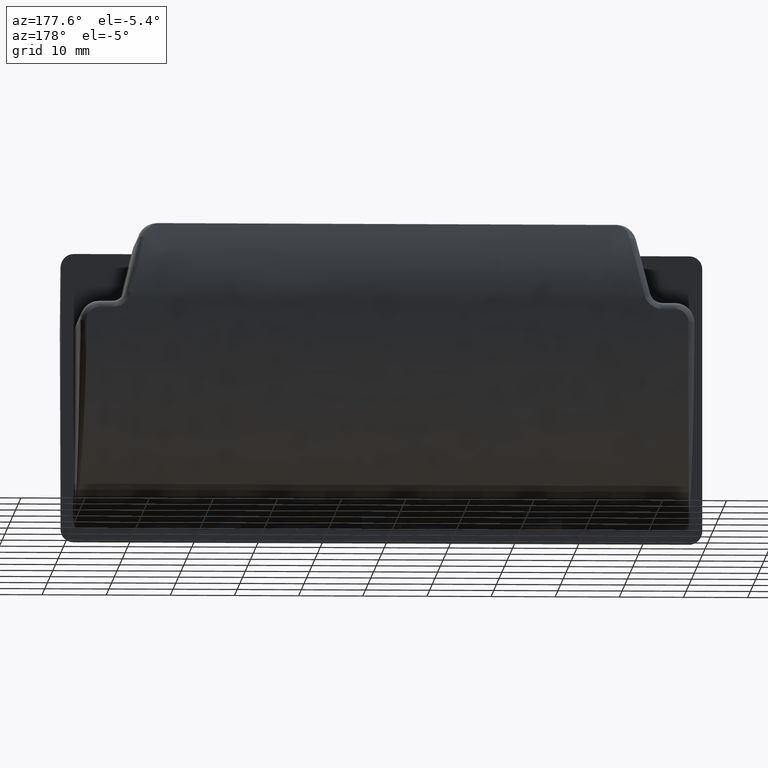
[diagram: clean part render]
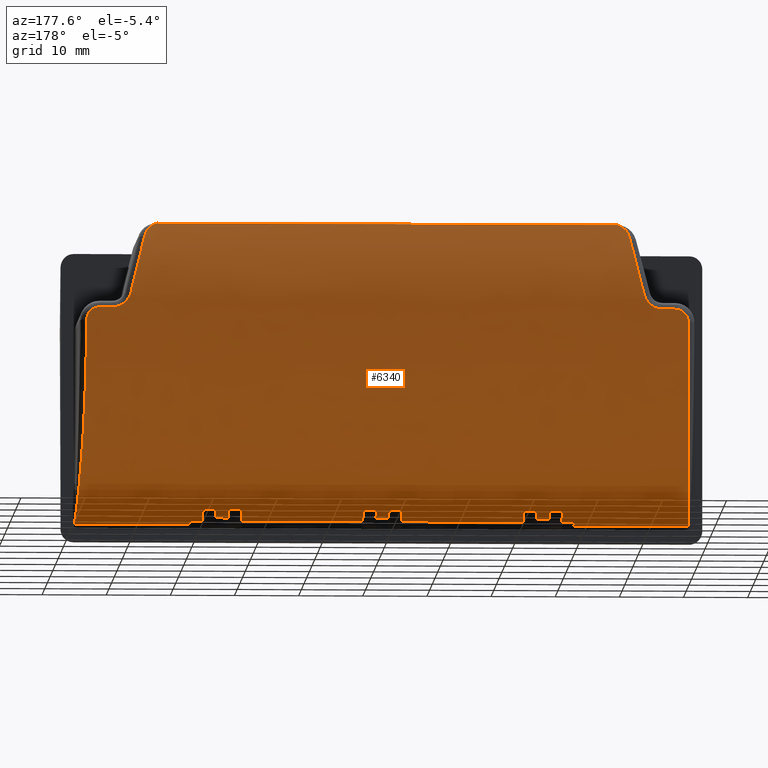
[diagram: same view with one face highlighted and labeled with its STEP entity id]
A machine part, auxiliary view. The second image highlights one B-rep face of the part: STEP entity #6340.
In plain terms, the highlighted face is a freeform B-spline surface patch.
Its self-contained STEP definition (entity closure, byte-faithful):
#92=CARTESIAN_POINT('',(-35.899999999999999,19.893540093386449,24.750000000000000));
#93=VERTEX_POINT('',#92);
#115=CARTESIAN_POINT('',(-37.839148576280898,20.612478520600650,22.514547285819450));
#116=VERTEX_POINT('',#115);
#117=CARTESIAN_POINT('',(-37.839148576280898,20.612478520600650,22.514547285819450));
#118=CARTESIAN_POINT('',(-37.800870336549991,20.567686072222688,22.671177995549719));
#119=CARTESIAN_POINT('',(-37.759782833870652,20.521770831055552,22.827070854278659));
#120=CARTESIAN_POINT('',(-37.709788895459560,20.475668094829832,22.980219193853870));
#121=CARTESIAN_POINT('',(-37.608478700523413,20.382243224884348,23.290566580549680));
#122=CARTESIAN_POINT('',(-37.468074215580728,20.287496659540700,23.590993130167359));
#123=CARTESIAN_POINT('',(-37.266355972204501,20.201926652896510,23.851368486637138));
#124=CARTESIAN_POINT('',(-36.994683596115401,20.086681712042910,24.202039752573441));
#125=CARTESIAN_POINT('',(-36.629683232497491,19.985544890992550,24.490831413372241));
#126=CARTESIAN_POINT('',(-36.200819866751040,19.929103724347019,24.650119651113862));
#127=CARTESIAN_POINT('',(-36.101954704270852,19.916092435538818,24.686840105140281));
#128=CARTESIAN_POINT('',(-36.003242477033709,19.902457157588710,24.725096624598098));
#129=CARTESIAN_POINT('',(-35.899999999999999,19.893540093386449,24.750000000000000));
#130=B_SPLINE_CURVE_WITH_KNOTS('',3,(#117,#118,#119,#120,#121,#122,#123,#124,#125,#126,#127,#128,#129),.UNSPECIFIED.,.F.,.U.,(4,3,3,3,4),(0.0,0.502038740231063,1.519394928897157,2.889561397124688,3.205423607156206),.UNSPECIFIED.);
#131=EDGE_CURVE('',#116,#93,#130,.T.);
#193=CARTESIAN_POINT('',(-39.991277135578251,21.982236698723849,13.747018506731020));
#194=VERTEX_POINT('',#193);
#224=CARTESIAN_POINT('',(-39.991277135578251,21.982236698723849,13.747018506731020));
#225=CARTESIAN_POINT('',(-38.894333844764773,21.841800353381220,18.215841630557282));
#226=CARTESIAN_POINT('',(-37.839148576280863,20.612478520600661,22.514547285819440));
#234=(BOUNDED_CURVE()B_SPLINE_CURVE(2,(#224,#225,#226),.UNSPECIFIED.,.F.,.U.)CURVE()GEOMETRIC_REPRESENTATION_ITEM()QUASI_UNIFORM_CURVE()RATIONAL_B_SPLINE_CURVE((1.0,0.992375855348941,1.0))REPRESENTATION_ITEM(''));
#235=EDGE_CURVE('',#194,#116,#234,.T.);
#278=CARTESIAN_POINT('',(-42.899999999999999,21.980008804350351,11.416678631326921));
#279=VERTEX_POINT('',#278);
#323=CARTESIAN_POINT('',(-42.899999999999999,21.980008804350351,11.416678631326921));
#324=CARTESIAN_POINT('',(-42.730981769640920,21.980008804350351,11.416678631326921));
#325=CARTESIAN_POINT('',(-42.564334933638790,21.980503485457071,11.431264111568360));
#326=CARTESIAN_POINT('',(-42.317777236776401,21.981881275858569,11.474133958457980));
#327=CARTESIAN_POINT('',(-42.236163227712453,21.982445618394941,11.491941813435860));
#328=CARTESIAN_POINT('',(-42.114609343296387,21.983427898337819,11.523988364164870));
#329=CARTESIAN_POINT('',(-42.074236090075971,21.983777889493521,11.535560827425360));
#330=CARTESIAN_POINT('',(-41.993782882736618,21.984518532182680,11.560510358557741));
#331=CARTESIAN_POINT('',(-41.953636822896208,21.984909935774599,11.573914774342990));
#332=CARTESIAN_POINT('',(-41.755460677760013,21.986936652594139,11.644850265543340));
#333=CARTESIAN_POINT('',(-41.603792400148293,21.988794214440009,11.714373309548870));
#334=CARTESIAN_POINT('',(-41.386154235536416,21.991588537919611,11.837000692940050));
#335=CARTESIAN_POINT('',(-41.315261231993397,21.992520782920550,11.880950388762621));
#336=CARTESIAN_POINT('',(-41.211423987213628,21.993870347403870,11.951529090558619));
#337=CARTESIAN_POINT('',(-41.177229147259951,21.994312010929640,11.975832007234470));
#338=CARTESIAN_POINT('',(-41.109685014616751,21.995169811494080,12.026010746033290));
#339=CARTESIAN_POINT('',(-41.076261992817820,21.995586815053692,12.051949008904060));
#340=CARTESIAN_POINT('',(-40.912622980210649,21.997567768273811,12.184542900498350));
#341=CARTESIAN_POINT('',(-40.792206983161563,21.998828460150740,12.300167797804850));
#342=CARTESIAN_POINT('',(-40.626584416537867,21.999822926898361,12.487257531373320));
#343=CARTESIAN_POINT('',(-40.573890796368580,22.000004768246470,12.551908605758319));
#344=CARTESIAN_POINT('',(-40.473564453791653,21.999995041823450,12.685816917467671));
#345=CARTESIAN_POINT('',(-40.425811421543067,21.999802361092371,12.755267292585771));
#346=CARTESIAN_POINT('',(-40.291150161124811,21.998550624905111,12.969431452288759));
#347=CARTESIAN_POINT('',(-40.214109644634078,21.996835044621822,13.117654908643090));
#348=CARTESIAN_POINT('',(-40.084293675240097,21.991253291011741,13.424473587816790));
#349=CARTESIAN_POINT('',(-40.031520891476220,21.987388912196071,13.583069988650360));
#350=CARTESIAN_POINT('',(-39.991277135578251,21.982236698723849,13.747018506731020));
#351=B_SPLINE_CURVE_WITH_KNOTS('',3,(#323,#324,#325,#326,#327,#328,#329,#330,#331,#332,#333,#334,#335,#336,#337,#338,#339,#340,#341,#342,#343,#344,#345,#346,#347,#348,#349,#350),.UNSPECIFIED.,.F.,.U.,(4,2,2,2,2,2,2,2,2,2,2,2,2,4),(0.0,0.125000000000002,0.187500000000004,0.218750000000004,0.250000000000005,0.374999999999991,0.437499999999982,0.468749999999980,0.499999999999977,0.624999999999982,0.687499999999983,0.749999999999985,0.874999999999993,1.0),.UNSPECIFIED.);
#352=EDGE_CURVE('',#279,#194,#351,.T.);
#371=CARTESIAN_POINT('',(-44.900000000000013,21.980008804350351,11.416678631326921));
#372=VERTEX_POINT('',#371);
#396=CARTESIAN_POINT('',(-44.900000000000013,21.980008804350351,11.416678631326921));
#397=CARTESIAN_POINT('',(-42.899999999999999,21.980008804350351,11.416678631326921));
#398=QUASI_UNIFORM_CURVE('',1,(#396,#397),.UNSPECIFIED.,.F.,.U.);
#399=EDGE_CURVE('',#372,#279,#398,.T.);
#512=CARTESIAN_POINT('',(-46.899999999999999,21.852389405818052,9.359535774184069));
#513=VERTEX_POINT('',#512);
#564=CARTESIAN_POINT('',(-46.899999999999999,21.852389405818052,9.359535774184069));
#565=CARTESIAN_POINT('',(-46.900000000000020,21.864516404296889,9.493039091184595));
#566=CARTESIAN_POINT('',(-46.887483280503481,21.875774419913810,9.625251615995460));
#567=CARTESIAN_POINT('',(-46.849967114386693,21.891425652238929,9.821632204573520));
#568=CARTESIAN_POINT('',(-46.834293989078233,21.896429323675399,9.886699851274436));
#569=CARTESIAN_POINT('',(-46.797200243700942,21.905878902245579,10.013954488775161));
#570=CARTESIAN_POINT('',(-46.754263704559712,21.914817017285241,10.138899526170700));
#571=CARTESIAN_POINT('',(-46.699736514937761,21.922807463528301,10.259258262620371));
#572=CARTESIAN_POINT('',(-46.654407360013302,21.928469011575711,10.347770762046160));
#573=CARTESIAN_POINT('',(-46.638557398416779,21.930300940911131,10.376981657535991));
#574=CARTESIAN_POINT('',(-46.605345984128753,21.933857884422551,10.434804214819650));
#575=CARTESIAN_POINT('',(-46.587940779102311,21.935586499632521,10.463478833631010));
#576=CARTESIAN_POINT('',(-46.497951242813883,21.943889836235410,10.603923054933061));
#577=CARTESIAN_POINT('',(-46.416147162315767,21.949507363676659,10.707827195477909));
#578=CARTESIAN_POINT('',(-46.278877352507763,21.956732631416610,10.851123036771400));
#579=CARTESIAN_POINT('',(-46.230676644731410,21.958939430682481,10.896780416855030));
#580=CARTESIAN_POINT('',(-46.154567264591869,21.961978119785890,10.961979767377750));
#581=CARTESIAN_POINT('',(-46.128528106310277,21.962946464013090,10.983183553903631));
#582=CARTESIAN_POINT('',(-46.075751831466746,21.964777170750210,11.024010295074969));
#583=CARTESIAN_POINT('',(-46.048947102310450,21.965642429565630,11.043694267699181));
#584=CARTESIAN_POINT('',(-45.912868158231937,21.969738254051620,11.138514883354990));
#585=CARTESIAN_POINT('',(-45.797487984118469,21.972286621965878,11.202958641015700));
#586=CARTESIAN_POINT('',(-45.614447213703208,21.975281593159298,11.282151905878010));
#587=CARTESIAN_POINT('',(-45.551382428418641,21.976143692292130,11.305717605389750));
#588=CARTESIAN_POINT('',(-45.424263190398563,21.977585776762002,11.345922627654540));
#589=CARTESIAN_POINT('',(-45.360112334454698,21.978169476249771,11.362652418637079));
#590=CARTESIAN_POINT('',(-45.165923140560558,21.979557957052631,11.402933755729549));
#591=CARTESIAN_POINT('',(-45.034165973739107,21.980008804350359,11.416678631326921));
#592=CARTESIAN_POINT('',(-44.900000000000013,21.980008804350351,11.416678631326921));
#593=B_SPLINE_CURVE_WITH_KNOTS('',3,(#564,#565,#566,#567,#568,#569,#570,#571,#572,#573,#574,#575,#576,#577,#578,#579,#580,#581,#582,#583,#584,#585,#586,#587,#588,#589,#590,#591,#592),.UNSPECIFIED.,.F.,.U.,(4,2,2,1,2,2,2,2,2,2,2,2,2,2,4),(0.0,0.124999999999990,0.187499999999986,0.249999999999983,0.312499999999979,0.343749999999979,0.374999999999980,0.499999999999986,0.562499999999992,0.593749999999996,0.624999999999999,0.750000000000001,0.812499999999999,0.874999999999998,1.0),.UNSPECIFIED.);
#594=EDGE_CURVE('',#513,#372,#593,.T.);
#724=CARTESIAN_POINT('',(-47.896685749016193,-0.001224091961159,-20.546921611470491));
#725=VERTEX_POINT('',#724);
#726=CARTESIAN_POINT('',(-47.896685749016193,-0.001224091961159,-20.546921611470491));
#727=CARTESIAN_POINT('',(-47.885773402638563,0.259481165434836,-20.434799618005250));
#728=CARTESIAN_POINT('',(-47.864317647580421,0.772076755020469,-20.214344328507622));
#729=CARTESIAN_POINT('',(-47.832779046622193,1.517805225134992,-19.867136862326682));
#730=CARTESIAN_POINT('',(-47.802418920714970,2.230138305095111,-19.517290070802410));
#731=CARTESIAN_POINT('',(-47.773245712067776,2.908845177937521,-19.165151865281640));
#732=CARTESIAN_POINT('',(-47.745257845779683,3.554638972780887,-18.812920656426929));
#733=CARTESIAN_POINT('',(-47.718455584276178,4.168058561744786,-18.462203011982002));
#734=CARTESIAN_POINT('',(-47.692838732872502,4.749725880659209,-18.114641992472290));
#735=CARTESIAN_POINT('',(-47.668407215307653,5.300272014121669,-17.771759969972820));
#736=CARTESIAN_POINT('',(-47.645160939336229,5.820347497085275,-17.435000349067948));
#737=CARTESIAN_POINT('',(-47.623099785851593,6.310611906358920,-17.105719307174109));
#738=CARTESIAN_POINT('',(-47.602223758593681,6.771728957045408,-16.785190470616321));
#739=CARTESIAN_POINT('',(-47.582532428413458,7.204361302212331,-16.474605907650890));
#740=CARTESIAN_POINT('',(-47.564026844765017,7.609163722067380,-16.175080166814439));
#741=CARTESIAN_POINT('',(-47.546702965801543,7.986784495201670,-15.887646699884010));
#742=CARTESIAN_POINT('',(-47.503812097618699,8.920330609838373,-15.158035507260561));
#743=CARTESIAN_POINT('',(-47.438086533676028,10.336639639167791,-13.950080177221521));
#744=CARTESIAN_POINT('',(-47.353716663395041,12.118777634518770,-12.195896075829911));
#745=CARTESIAN_POINT('',(-47.278146003832717,13.688244678134330,-10.427140885081601));
#746=CARTESIAN_POINT('',(-47.212780351498068,15.028524516021699,-8.707317518512564));
#747=CARTESIAN_POINT('',(-47.156402691244452,16.181091975844559,-7.037042273072355));
#748=CARTESIAN_POINT('',(-47.107466732424740,17.181155548372541,-5.407441420251323));
#749=CARTESIAN_POINT('',(-47.063686413280230,18.077077904532629,-3.758933633686135));
#750=CARTESIAN_POINT('',(-47.025065797716792,18.871339969496852,-2.098653399444526));
#751=CARTESIAN_POINT('',(-46.991604031524943,19.566795058013358,-0.433301272962154));
#752=CARTESIAN_POINT('',(-46.963298119086488,20.166690797693182,1.230867502905395));
#753=CARTESIAN_POINT('',(-46.940158262096460,20.674390251261880,2.888064594630160));
#754=CARTESIAN_POINT('',(-46.922145723514390,21.094157752944991,4.532893349213828));
#755=CARTESIAN_POINT('',(-46.909399263877361,21.428112216367659,6.160617492438631));
#756=CARTESIAN_POINT('',(-46.901416246937977,21.687043396067569,7.766168532635901));
#757=CARTESIAN_POINT('',(-46.900468573068011,21.797683771515960,8.832361482185121));
#758=CARTESIAN_POINT('',(-46.899999999999999,21.852389405818052,9.359535774184069));
#759=B_SPLINE_CURVE_WITH_KNOTS('',3,(#726,#727,#728,#729,#730,#731,#732,#733,#734,#735,#736,#737,#738,#739,#740,#741,#742,#743,#744,#745,#746,#747,#748,#749,#750,#751,#752,#753,#754,#755,#756,#757,#758),.UNSPECIFIED.,.F.,.U.,(4,1,1,1,1,1,1,1,1,1,1,1,1,1,1,1,1,1,1,1,1,1,1,1,1,1,1,1,1,1,4),(0.000005639576252,0.021896131467624,0.043046539183044,0.063451219886814,0.083110170459251,0.102023387923423,0.120190869448762,0.137612612355442,0.154288614119736,0.170218872380634,0.185403384948071,0.199842149813302,0.213535165162078,0.226482429391637,0.238683941132872,0.250139699279726,0.317873748717035,0.382114477535371,0.442861840647980,0.500115838875528,0.550158430046920,0.599280517912298,0.647482332891308,0.694764119786767,0.741126138904787,0.786568667287427,0.831092000071647,0.874696451990360,0.917382359033694,0.959150080291330,1.0),.UNSPECIFIED.);
#760=EDGE_CURVE('',#725,#513,#759,.T.);
#996=CARTESIAN_POINT('',(46.899999999999999,21.852389405818052,9.359535774184069));
#997=VERTEX_POINT('',#996);
#1009=CARTESIAN_POINT('',(47.896686583894329,-0.001223783607167,-20.546922386931310));
#1010=VERTEX_POINT('',#1009);
#1023=CARTESIAN_POINT('',(46.899999999999999,21.852389405818052,9.359535774184069));
#1024=CARTESIAN_POINT('',(46.900130361389550,21.824126748446901,9.070914564498111));
#1025=CARTESIAN_POINT('',(46.900392703717657,21.767250311650500,8.490086450027960));
#1026=CARTESIAN_POINT('',(46.902768869087922,21.654446936789871,7.616436966000594));
#1027=CARTESIAN_POINT('',(46.906589546105813,21.520070123925340,6.734975467200311));
#1028=CARTESIAN_POINT('',(46.912002295349417,21.361453989155269,5.846541585613918));
#1029=CARTESIAN_POINT('',(46.918966877459887,21.178431435632142,4.951787939603158));
#1030=CARTESIAN_POINT('',(46.927494300108407,20.970168959908360,4.051468417638176));
#1031=CARTESIAN_POINT('',(46.937581594908011,20.736032664851500,3.146360155846571));
#1032=CARTESIAN_POINT('',(46.949229609765730,20.475354510786619,2.237285367648124));
#1033=CARTESIAN_POINT('',(46.962438156509222,20.187498646524240,1.325105840215020));
#1034=CARTESIAN_POINT('',(46.977207334216253,19.871845990658809,0.410724782644463));
#1035=CARTESIAN_POINT('',(46.993537168571173,19.527801188955529,-0.504913440664827));
#1036=CARTESIAN_POINT('',(47.011427710539891,19.154793556577861,-1.420823115530112));
#1037=CARTESIAN_POINT('',(47.030879008887318,18.752279735175851,-2.335977239578807));
#1038=CARTESIAN_POINT('',(47.051891120707303,18.319745978987100,-3.249307622699699));
#1039=CARTESIAN_POINT('',(47.074464097788422,17.856710541690500,-4.159705203527599));
#1040=CARTESIAN_POINT('',(47.098598031888841,17.362726382553021,-5.066020121980664));
#1041=CARTESIAN_POINT('',(47.124292885518472,16.837382794482920,-5.967063270141456));
#1042=CARTESIAN_POINT('',(47.151549133423842,16.280311382223509,-6.861602833886648));
#1043=CARTESIAN_POINT('',(47.180365331777530,15.691175752283510,-7.748380441149324));
#1044=CARTESIAN_POINT('',(47.221492097410703,14.849942860277499,-8.936447779349912));
#1045=CARTESIAN_POINT('',(47.278137871129097,13.688388664463799,-10.426955493683650));
#1046=CARTESIAN_POINT('',(47.353703007193701,12.119038236836079,-12.195614584156310));
#1047=CARTESIAN_POINT('',(47.438086720873748,10.336814078119859,-13.949921898988350));
#1048=CARTESIAN_POINT('',(47.510202490910437,8.782194352350041,-15.275855197761461));
#1049=CARTESIAN_POINT('',(47.567787853458903,7.527715837626763,-16.241087689689920));
#1050=CARTESIAN_POINT('',(47.609287539917183,6.617587892288705,-16.899789099781930));
#1051=CARTESIAN_POINT('',(47.656212812873193,5.575683268444858,-17.602504758107148));
#1052=CARTESIAN_POINT('',(47.708581939447740,4.395607381269108,-18.337172356528821));
#1053=CARTESIAN_POINT('',(47.766396713674943,3.070346624138356,-19.088091536228621));
#1054=CARTESIAN_POINT('',(47.829634092642529,1.596693247487032,-19.845537381553321));
#1055=CARTESIAN_POINT('',(47.873768018016023,0.544945397550837,-20.307190346547650));
#1056=CARTESIAN_POINT('',(47.896686583894329,-0.001223783607167,-20.546922386931310));
#1057=B_SPLINE_CURVE_WITH_KNOTS('',3,(#1023,#1024,#1025,#1026,#1027,#1028,#1029,#1030,#1031,#1032,#1033,#1034,#1035,#1036,#1037,#1038,#1039,#1040,#1041,#1042,#1043,#1044,#1045,#1046,#1047,#1048,#1049,#1050,#1051,#1052,#1053,#1054,#1055,#1056),.UNSPECIFIED.,.F.,.U.,(4,1,1,1,1,1,1,1,1,1,1,1,1,1,1,1,1,1,1,1,1,1,1,1,1,1,1,1,1,1,1,4),(0.0,0.022353797540702,0.044985308220906,0.067894600150437,0.091081738966689,0.114546787950870,0.138289808137503,0.162310858417658,0.186609995636323,0.211187274684329,0.236042748585162,0.261176468577026,0.286588484190434,0.312278843321648,0.338247592302205,0.364494775964783,0.391020437705642,0.417824619543845,0.444907362177449,0.472268705036868,0.499908686335553,0.557152466290041,0.617895502307022,0.682137794523149,0.749879297045279,0.775335300922110,0.804216655709691,0.836523269099693,0.872255035229616,0.911411835329557,0.953993538109033,0.999993731756879),.UNSPECIFIED.);
#1058=EDGE_CURVE('',#997,#1010,#1057,.T.);
#1171=CARTESIAN_POINT('',(44.900000000000013,21.980008804350351,11.416678631326921));
#1172=VERTEX_POINT('',#1171);
#1225=CARTESIAN_POINT('',(44.900000000000013,21.980008804350351,11.416678631326921));
#1226=CARTESIAN_POINT('',(45.034157543835583,21.980008804350351,11.416678631326921));
#1227=CARTESIAN_POINT('',(45.166743250429903,21.979558311088311,11.402933143789509));
#1228=CARTESIAN_POINT('',(45.363287789990672,21.978143576482928,11.361906629499529));
#1229=CARTESIAN_POINT('',(45.428114319701983,21.977547271626989,11.344832148995909));
#1230=CARTESIAN_POINT('',(45.554572078045133,21.976102027736850,11.304573937599891));
#1231=CARTESIAN_POINT('',(45.678397935115051,21.974400330008780,11.258095900646840));
#1232=CARTESIAN_POINT('',(45.797053272866769,21.972122537790071,11.199401437881241));
#1233=CARTESIAN_POINT('',(45.913093558826603,21.969508838426009,11.134530081744790));
#1234=CARTESIAN_POINT('',(45.970106082118257,21.968023829086309,11.098775070520199));
#1235=CARTESIAN_POINT('',(46.133933751448971,21.963066975897569,10.984175122711999));
#1236=CARTESIAN_POINT('',(46.234143428558923,21.959097088623452,10.897959922826020));
#1237=CARTESIAN_POINT('',(46.371419729854821,21.951856599926870,10.754447357916680));
#1238=CARTESIAN_POINT('',(46.414989533308542,21.949227525523440,10.704227527729550));
#1239=CARTESIAN_POINT('',(46.497638209249729,21.943470910355352,10.598902986129429));
#1240=CARTESIAN_POINT('',(46.536128926052662,21.940383025952180,10.544535332784161));
#1241=CARTESIAN_POINT('',(46.643013604620592,21.930471997702220,10.377122597889009));
#1242=CARTESIAN_POINT('',(46.703099825999587,21.922991176258058,10.259548320852550));
#1243=CARTESIAN_POINT('',(46.776520987866398,21.910196778423600,10.074280293994200));
#1244=CARTESIAN_POINT('',(46.798245242344933,21.905647171631578,10.010754968979620));
#1245=CARTESIAN_POINT('',(46.835205675839063,21.896160721996349,9.883165821651311));
#1246=CARTESIAN_POINT('',(46.850561021648872,21.891209304053589,9.818870905580743));
#1247=CARTESIAN_POINT('',(46.887485947057542,21.875708923498941,9.624525533234916));
#1248=CARTESIAN_POINT('',(46.899999999999977,21.864515441253950,9.493028489268163));
#1249=CARTESIAN_POINT('',(46.899999999999999,21.852389405818052,9.359535774184069));
#1250=B_SPLINE_CURVE_WITH_KNOTS('',3,(#1225,#1226,#1227,#1228,#1229,#1230,#1231,#1232,#1233,#1234,#1235,#1236,#1237,#1238,#1239,#1240,#1241,#1242,#1243,#1244,#1245,#1246,#1247,#1248,#1249),.UNSPECIFIED.,.F.,.U.,(4,2,2,1,2,2,2,2,2,2,2,2,4),(0.0,0.124999999999997,0.187499999999995,0.249999999999994,0.312499999999992,0.374999999999990,0.499999999999992,0.562499999999994,0.624999999999995,0.749999999999997,0.812499999999997,0.874999999999998,1.0),.UNSPECIFIED.);
#1251=EDGE_CURVE('',#1172,#997,#1250,.T.);
#1270=CARTESIAN_POINT('',(42.899999999999999,21.980008804350351,11.416678631326921));
#1271=VERTEX_POINT('',#1270);
#1295=CARTESIAN_POINT('',(42.899999999999999,21.980008804350351,11.416678631326921));
#1296=CARTESIAN_POINT('',(44.900000000000013,21.980008804350351,11.416678631326921));
#1297=QUASI_UNIFORM_CURVE('',1,(#1295,#1296),.UNSPECIFIED.,.F.,.U.);
#1298=EDGE_CURVE('',#1271,#1172,#1297,.T.);
#1381=CARTESIAN_POINT('',(39.991277135578251,21.982236698723849,13.747018506730960));
#1382=VERTEX_POINT('',#1381);
#1424=CARTESIAN_POINT('',(39.991277135578251,21.982236698723849,13.747018506730960));
#1425=CARTESIAN_POINT('',(40.031522691082230,21.987389142590910,13.583062657259410));
#1426=CARTESIAN_POINT('',(40.084339528145250,21.991258618018829,13.424293762526631));
#1427=CARTESIAN_POINT('',(40.181938662461192,21.995450089303151,13.193726581355641));
#1428=CARTESIAN_POINT('',(40.217549525540697,21.996577930853739,13.118141632228969));
#1429=CARTESIAN_POINT('',(40.295032708775771,21.998342905852368,12.969558078298689));
#1430=CARTESIAN_POINT('',(40.337070871214060,21.998981275477622,12.896301278589140));
#1431=CARTESIAN_POINT('',(40.471739042212782,22.000221551265760,12.682424334465599));
#1432=CARTESIAN_POINT('',(40.571961408969962,22.000152905569738,12.548884251819331));
#1433=CARTESIAN_POINT('',(40.737631981482629,21.999155143041300,12.361854981606861));
#1434=CARTESIAN_POINT('',(40.795424663422487,21.998672607825160,12.301736613592880));
#1435=CARTESIAN_POINT('',(40.916251544596143,21.997475837408480,12.186038405648420));
#1436=CARTESIAN_POINT('',(40.979440554190482,21.996759637753520,12.130333541543431));
#1437=CARTESIAN_POINT('',(41.176187475466790,21.994375652232520,11.971119894856709));
#1438=CARTESIAN_POINT('',(41.314408801789902,21.992509378870501,11.877366376467910));
#1439=CARTESIAN_POINT('',(41.604596893568107,21.988784207866459,11.713979352194571));
#1440=CARTESIAN_POINT('',(41.756728529101402,21.986921399423689,11.644281173066499));
#1441=CARTESIAN_POINT('',(42.074857347257471,21.983672545144781,11.530641484419300));
#1442=CARTESIAN_POINT('',(42.236449230808986,21.982334845307509,11.488244531300561));
#1443=CARTESIAN_POINT('',(42.564508640992621,21.980503417618380,11.431264214890930));
#1444=CARTESIAN_POINT('',(42.730975773987211,21.980008804350341,11.416678631326921));
#1445=CARTESIAN_POINT('',(42.899999999999999,21.980008804350351,11.416678631326921));
#1446=B_SPLINE_CURVE_WITH_KNOTS('',3,(#1424,#1425,#1426,#1427,#1428,#1429,#1430,#1431,#1432,#1433,#1434,#1435,#1436,#1437,#1438,#1439,#1440,#1441,#1442,#1443,#1444,#1445),.UNSPECIFIED.,.F.,.U.,(4,2,2,2,2,2,2,2,2,2,4),(0.0,0.125000000000002,0.187500000000002,0.250000000000002,0.375000000000003,0.437500000000003,0.500000000000003,0.625000000000002,0.750000000000001,0.875000000000001,1.0),.UNSPECIFIED.);
#1447=EDGE_CURVE('',#1382,#1271,#1446,.T.);
#1500=CARTESIAN_POINT('',(37.839148576281147,20.612478520600700,22.514547285819351));
#1501=VERTEX_POINT('',#1500);
#1531=CARTESIAN_POINT('',(37.839148576281147,20.612478520600700,22.514547285819351));
#1532=CARTESIAN_POINT('',(38.894333844764915,21.841800353381295,18.215841630556962));
#1533=CARTESIAN_POINT('',(39.991277135578173,21.982236698723870,13.747018506730960));
#1541=(BOUNDED_CURVE()B_SPLINE_CURVE(2,(#1531,#1532,#1533),.UNSPECIFIED.,.F.,.U.)CURVE()GEOMETRIC_REPRESENTATION_ITEM()QUASI_UNIFORM_CURVE()RATIONAL_B_SPLINE_CURVE((1.0,0.992375855348944,1.0))REPRESENTATION_ITEM(''));
#1542=EDGE_CURVE('',#1501,#1382,#1541,.T.);
#1659=CARTESIAN_POINT('',(35.899999999999999,19.893540093386449,24.750000000000000));
#1660=VERTEX_POINT('',#1659);
#1661=CARTESIAN_POINT('',(35.899999999999999,19.893540093386449,24.750000000000000));
#1662=CARTESIAN_POINT('',(35.971908723157263,19.901021176630248,24.729073450007419));
#1663=CARTESIAN_POINT('',(36.114164903794418,19.915820915557148,24.687674702468460));
#1664=CARTESIAN_POINT('',(36.317985576727331,19.944970250857988,24.605489132863791));
#1665=CARTESIAN_POINT('',(36.511004439492027,19.978772748932620,24.509397655693629));
#1666=CARTESIAN_POINT('',(36.692767084002050,20.017592283319999,24.397956923035821));
#1667=CARTESIAN_POINT('',(36.863326086297633,20.061151382164159,24.271488891549200));
#1668=CARTESIAN_POINT('',(37.022705253040741,20.109286539787529,24.129923229668581));
#1669=CARTESIAN_POINT('',(37.170587891944663,20.161870921799078,23.973047086309968));
#1670=CARTESIAN_POINT('',(37.391776473367251,20.252722087234812,23.697457782329199));
#1671=CARTESIAN_POINT('',(37.645652763371857,20.407339515971401,23.215214311068578));
#1672=CARTESIAN_POINT('',(37.770023712781317,20.539194218060651,22.764855092230789));
#1673=CARTESIAN_POINT('',(37.839148576281147,20.612478520600700,22.514547285819351));
#1674=B_SPLINE_CURVE_WITH_KNOTS('',3,(#1661,#1662,#1663,#1664,#1665,#1666,#1667,#1668,#1669,#1670,#1671,#1672,#1673),.UNSPECIFIED.,.F.,.U.,(4,1,1,1,1,1,1,1,1,1,4),(0.0,0.070192661334592,0.138861315731970,0.206502697898061,0.273636348958989,0.340793594314227,0.408505203405899,0.477289113076353,0.547639579915645,0.748579934144833,1.000000000000000),.UNSPECIFIED.);
#1675=EDGE_CURVE('',#1660,#1501,#1674,.T.);
#3397=CARTESIAN_POINT('',(-26.0,4.013231578164450,-18.553023632871898));
#3398=VERTEX_POINT('',#3397);
#3412=CARTESIAN_POINT('',(-26.0,1.999999999999780,-19.632783089640800));
#3413=VERTEX_POINT('',#3412);
#3414=CARTESIAN_POINT('',(-26.0,1.999999999999736,-19.632783089640728));
#3415=CARTESIAN_POINT('',(-26.0,3.023754420584933,-19.124858658273478));
#3416=CARTESIAN_POINT('',(-26.0,4.013231578164396,-18.553023632871842));
#3424=(BOUNDED_CURVE()B_SPLINE_CURVE(2,(#3414,#3415,#3416),.UNSPECIFIED.,.F.,.U.)CURVE()GEOMETRIC_REPRESENTATION_ITEM()QUASI_UNIFORM_CURVE()RATIONAL_B_SPLINE_CURVE((1.0,0.999496499220353,1.0))REPRESENTATION_ITEM(''));
#3425=EDGE_CURVE('',#3413,#3398,#3424,.T.);
#3440=CARTESIAN_POINT('',(-24.0,1.999999999999780,-19.632783089640800));
#3441=VERTEX_POINT('',#3440);
#3449=CARTESIAN_POINT('',(-24.0,4.013231578164450,-18.553023632871898));
#3450=VERTEX_POINT('',#3449);
#3451=CARTESIAN_POINT('',(-24.0,1.999999999999736,-19.632783089640728));
#3452=CARTESIAN_POINT('',(-23.999999999999996,3.023754420584933,-19.124858658273478));
#3453=CARTESIAN_POINT('',(-24.0,4.013231578164396,-18.553023632871842));
#3461=(BOUNDED_CURVE()B_SPLINE_CURVE(2,(#3451,#3452,#3453),.UNSPECIFIED.,.F.,.U.)CURVE()GEOMETRIC_REPRESENTATION_ITEM()QUASI_UNIFORM_CURVE()RATIONAL_B_SPLINE_CURVE((1.0,0.999496499220353,1.0))REPRESENTATION_ITEM(''));
#3462=EDGE_CURVE('',#3441,#3450,#3461,.T.);
#3491=CARTESIAN_POINT('',(-24.0,1.999999999999780,-19.632783089640800));
#3492=CARTESIAN_POINT('',(-26.0,1.999999999999780,-19.632783089640800));
#3493=QUASI_UNIFORM_CURVE('',1,(#3491,#3492),.UNSPECIFIED.,.F.,.U.);
#3494=EDGE_CURVE('',#3441,#3413,#3493,.T.);
#3507=CARTESIAN_POINT('',(24.0,4.013231578164450,-18.553023632871898));
#3508=VERTEX_POINT('',#3507);
#3522=CARTESIAN_POINT('',(24.0,1.999999999999780,-19.632783089640800));
#3523=VERTEX_POINT('',#3522);
#3524=CARTESIAN_POINT('',(24.0,1.999999999999780,-19.632783089640800));
#3525=CARTESIAN_POINT('',(23.999999999999996,3.023754420584933,-19.124858658273478));
#3526=CARTESIAN_POINT('',(24.0,4.013231578164450,-18.553023632871898));
#3534=(BOUNDED_CURVE()B_SPLINE_CURVE(2,(#3524,#3525,#3526),.UNSPECIFIED.,.F.,.U.)CURVE()GEOMETRIC_REPRESENTATION_ITEM()QUASI_UNIFORM_CURVE()RATIONAL_B_SPLINE_CURVE((1.0,0.999496499220353,1.0))REPRESENTATION_ITEM(''));
#3535=EDGE_CURVE('',#3523,#3508,#3534,.T.);
#3550=CARTESIAN_POINT('',(26.0,1.999999999999780,-19.632783089640800));
#3551=VERTEX_POINT('',#3550);
#3559=CARTESIAN_POINT('',(26.0,4.013231578164450,-18.553023632871898));
#3560=VERTEX_POINT('',#3559);
#3561=CARTESIAN_POINT('',(26.0,1.999999999999780,-19.632783089640800));
#3562=CARTESIAN_POINT('',(26.0,3.023754420584933,-19.124858658273478));
#3563=CARTESIAN_POINT('',(26.0,4.013231578164450,-18.553023632871898));
#3571=(BOUNDED_CURVE()B_SPLINE_CURVE(2,(#3561,#3562,#3563),.UNSPECIFIED.,.F.,.U.)CURVE()GEOMETRIC_REPRESENTATION_ITEM()QUASI_UNIFORM_CURVE()RATIONAL_B_SPLINE_CURVE((1.0,0.999496499220353,1.0))REPRESENTATION_ITEM(''));
#3572=EDGE_CURVE('',#3551,#3560,#3571,.T.);
#3601=CARTESIAN_POINT('',(26.0,1.999999999999780,-19.632783089640800));
#3602=CARTESIAN_POINT('',(24.0,1.999999999999780,-19.632783089640800));
#3603=QUASI_UNIFORM_CURVE('',1,(#3601,#3602),.UNSPECIFIED.,.F.,.U.);
#3604=EDGE_CURVE('',#3551,#3523,#3603,.T.);
#3617=CARTESIAN_POINT('',(-1.0,4.013231578164450,-18.553023632871898));
#3618=VERTEX_POINT('',#3617);
#3632=CARTESIAN_POINT('',(-1.0,1.999999999999780,-19.632783089640800));
#3633=VERTEX_POINT('',#3632);
#3634=CARTESIAN_POINT('',(-1.0,1.999999999999780,-19.632783089640800));
#3635=CARTESIAN_POINT('',(-1.0,3.023754420584933,-19.124858658273478));
#3636=CARTESIAN_POINT('',(-1.0,4.013231578164450,-18.553023632871898));
#3644=(BOUNDED_CURVE()B_SPLINE_CURVE(2,(#3634,#3635,#3636),.UNSPECIFIED.,.F.,.U.)CURVE()GEOMETRIC_REPRESENTATION_ITEM()QUASI_UNIFORM_CURVE()RATIONAL_B_SPLINE_CURVE((1.0,0.999496499220353,1.0))REPRESENTATION_ITEM(''));
#3645=EDGE_CURVE('',#3633,#3618,#3644,.T.);
#3660=CARTESIAN_POINT('',(1.0,1.999999999999780,-19.632783089640800));
#3661=VERTEX_POINT('',#3660);
#3669=CARTESIAN_POINT('',(1.0,4.013231578164450,-18.553023632871898));
#3670=VERTEX_POINT('',#3669);
#3671=CARTESIAN_POINT('',(1.0,1.999999999999780,-19.632783089640800));
#3672=CARTESIAN_POINT('',(1.0,3.023754420584933,-19.124858658273478));
#3673=CARTESIAN_POINT('',(1.0,4.013231578164450,-18.553023632871898));
#3681=(BOUNDED_CURVE()B_SPLINE_CURVE(2,(#3671,#3672,#3673),.UNSPECIFIED.,.F.,.U.)CURVE()GEOMETRIC_REPRESENTATION_ITEM()QUASI_UNIFORM_CURVE()RATIONAL_B_SPLINE_CURVE((1.0,0.999496499220353,1.0))REPRESENTATION_ITEM(''));
#3682=EDGE_CURVE('',#3661,#3670,#3681,.T.);
#3711=CARTESIAN_POINT('',(1.0,1.999999999999780,-19.632783089640800));
#3712=CARTESIAN_POINT('',(-1.0,1.999999999999780,-19.632783089640800));
#3713=QUASI_UNIFORM_CURVE('',1,(#3711,#3712),.UNSPECIFIED.,.F.,.U.);
#3714=EDGE_CURVE('',#3661,#3633,#3713,.T.);
#3725=CARTESIAN_POINT('',(-22.0,1.129978450201466,-20.050000000000001));
#3726=VERTEX_POINT('',#3725);
#3727=CARTESIAN_POINT('',(-22.0,4.013231578164640,-18.553023632871401));
#3728=VERTEX_POINT('',#3727);
#3729=CARTESIAN_POINT('',(-22.0,1.129978450201456,-20.049999999999990));
#3730=CARTESIAN_POINT('',(-21.999999999999996,2.605411912214748,-19.366625632950679));
#3731=CARTESIAN_POINT('',(-22.0,4.013231578164632,-18.553023632871412));
#3739=(BOUNDED_CURVE()B_SPLINE_CURVE(2,(#3729,#3730,#3731),.UNSPECIFIED.,.F.,.U.)CURVE()GEOMETRIC_REPRESENTATION_ITEM()QUASI_UNIFORM_CURVE()RATIONAL_B_SPLINE_CURVE((1.0,0.998981533171721,1.0))REPRESENTATION_ITEM(''));
#3740=EDGE_CURVE('',#3726,#3728,#3739,.T.);
#3791=CARTESIAN_POINT('',(-28.0,1.129978450201466,-20.050000000000001));
#3792=VERTEX_POINT('',#3791);
#3800=CARTESIAN_POINT('',(-28.0,4.013231578164640,-18.553023632871401));
#3801=VERTEX_POINT('',#3800);
#3802=CARTESIAN_POINT('',(-28.0,1.129978450201456,-20.049999999999990));
#3803=CARTESIAN_POINT('',(-28.0,2.605411912214748,-19.366625632950679));
#3804=CARTESIAN_POINT('',(-28.0,4.013231578164632,-18.553023632871412));
#3812=(BOUNDED_CURVE()B_SPLINE_CURVE(2,(#3802,#3803,#3804),.UNSPECIFIED.,.F.,.U.)CURVE()GEOMETRIC_REPRESENTATION_ITEM()QUASI_UNIFORM_CURVE()RATIONAL_B_SPLINE_CURVE((1.0,0.998981533171721,1.0))REPRESENTATION_ITEM(''));
#3813=EDGE_CURVE('',#3792,#3801,#3812,.T.);
#3920=CARTESIAN_POINT('',(-22.0,4.013231578164640,-18.553023632871401));
#3921=CARTESIAN_POINT('',(-24.0,4.013231578164450,-18.553023632871898));
#3922=QUASI_UNIFORM_CURVE('',1,(#3920,#3921),.UNSPECIFIED.,.F.,.U.);
#3923=EDGE_CURVE('',#3728,#3450,#3922,.T.);
#3928=CARTESIAN_POINT('',(-26.0,4.013231578164450,-18.553023632871898));
#3929=CARTESIAN_POINT('',(-28.0,4.013231578164640,-18.553023632871401));
#3930=QUASI_UNIFORM_CURVE('',1,(#3928,#3929),.UNSPECIFIED.,.F.,.U.);
#3931=EDGE_CURVE('',#3398,#3801,#3930,.T.);
#3942=CARTESIAN_POINT('',(-2.999999999999890,4.013231578164640,-18.553023632871401));
#3943=VERTEX_POINT('',#3942);
#3944=CARTESIAN_POINT('',(-2.999999999999890,1.129978450201466,-20.050000000000001));
#3945=VERTEX_POINT('',#3944);
#3946=CARTESIAN_POINT('',(-2.999999999999890,4.013231578164656,-18.553023632871380));
#3947=CARTESIAN_POINT('',(-2.999999999999890,2.605411912214762,-19.366625632950665));
#3948=CARTESIAN_POINT('',(-2.999999999999890,1.129978450201482,-20.049999999999979));
#3956=(BOUNDED_CURVE()B_SPLINE_CURVE(2,(#3946,#3947,#3948),.UNSPECIFIED.,.F.,.U.)CURVE()GEOMETRIC_REPRESENTATION_ITEM()QUASI_UNIFORM_CURVE()RATIONAL_B_SPLINE_CURVE((1.0,0.998981533171721,1.0))REPRESENTATION_ITEM(''));
#3957=EDGE_CURVE('',#3943,#3945,#3956,.T.);
#4010=CARTESIAN_POINT('',(3.0,4.013231578164640,-18.553023632871401));
#4011=VERTEX_POINT('',#4010);
#4025=CARTESIAN_POINT('',(3.0,1.129978450201466,-20.050000000000001));
#4026=VERTEX_POINT('',#4025);
#4027=CARTESIAN_POINT('',(3.0,4.013231578164656,-18.553023632871380));
#4028=CARTESIAN_POINT('',(3.0,2.605411912214762,-19.366625632950665));
#4029=CARTESIAN_POINT('',(3.0,1.129978450201482,-20.049999999999979));
#4037=(BOUNDED_CURVE()B_SPLINE_CURVE(2,(#4027,#4028,#4029),.UNSPECIFIED.,.F.,.U.)CURVE()GEOMETRIC_REPRESENTATION_ITEM()QUASI_UNIFORM_CURVE()RATIONAL_B_SPLINE_CURVE((1.0,0.998981533171721,1.0))REPRESENTATION_ITEM(''));
#4038=EDGE_CURVE('',#4011,#4026,#4037,.T.);
#4137=CARTESIAN_POINT('',(3.0,4.013231578164640,-18.553023632871401));
#4138=CARTESIAN_POINT('',(1.0,4.013231578164450,-18.553023632871898));
#4139=QUASI_UNIFORM_CURVE('',1,(#4137,#4138),.UNSPECIFIED.,.F.,.U.);
#4140=EDGE_CURVE('',#4011,#3670,#4139,.T.);
#4145=CARTESIAN_POINT('',(-1.0,4.013231578164450,-18.553023632871898));
#4146=CARTESIAN_POINT('',(-2.999999999999890,4.013231578164640,-18.553023632871401));
#4147=QUASI_UNIFORM_CURVE('',1,(#4145,#4146),.UNSPECIFIED.,.F.,.U.);
#4148=EDGE_CURVE('',#3618,#3943,#4147,.T.);
#4159=CARTESIAN_POINT('',(22.0,4.013231578164640,-18.553023632871401));
#4160=VERTEX_POINT('',#4159);
#4161=CARTESIAN_POINT('',(22.0,1.129978450201466,-20.050000000000001));
#4162=VERTEX_POINT('',#4161);
#4163=CARTESIAN_POINT('',(22.0,4.013231578164656,-18.553023632871380));
#4164=CARTESIAN_POINT('',(22.000000000000004,2.605411912214762,-19.366625632950665));
#4165=CARTESIAN_POINT('',(22.0,1.129978450201482,-20.049999999999979));
#4173=(BOUNDED_CURVE()B_SPLINE_CURVE(2,(#4163,#4164,#4165),.UNSPECIFIED.,.F.,.U.)CURVE()GEOMETRIC_REPRESENTATION_ITEM()QUASI_UNIFORM_CURVE()RATIONAL_B_SPLINE_CURVE((1.0,0.998981533171721,1.0))REPRESENTATION_ITEM(''));
#4174=EDGE_CURVE('',#4160,#4162,#4173,.T.);
#4227=CARTESIAN_POINT('',(28.0,4.013231578164640,-18.553023632871401));
#4228=VERTEX_POINT('',#4227);
#4242=CARTESIAN_POINT('',(28.0,1.129978450201466,-20.050000000000001));
#4243=VERTEX_POINT('',#4242);
#4244=CARTESIAN_POINT('',(28.0,4.013231578164656,-18.553023632871380));
#4245=CARTESIAN_POINT('',(27.999999999999996,2.605411912214762,-19.366625632950665));
#4246=CARTESIAN_POINT('',(28.0,1.129978450201482,-20.049999999999979));
#4254=(BOUNDED_CURVE()B_SPLINE_CURVE(2,(#4244,#4245,#4246),.UNSPECIFIED.,.F.,.U.)CURVE()GEOMETRIC_REPRESENTATION_ITEM()QUASI_UNIFORM_CURVE()RATIONAL_B_SPLINE_CURVE((1.0,0.998981533171721,1.0))REPRESENTATION_ITEM(''));
#4255=EDGE_CURVE('',#4228,#4243,#4254,.T.);
#4354=CARTESIAN_POINT('',(28.0,4.013231578164640,-18.553023632871401));
#4355=CARTESIAN_POINT('',(26.0,4.013231578164450,-18.553023632871898));
#4356=QUASI_UNIFORM_CURVE('',1,(#4354,#4355),.UNSPECIFIED.,.F.,.U.);
#4357=EDGE_CURVE('',#4228,#3560,#4356,.T.);
#4362=CARTESIAN_POINT('',(24.0,4.013231578164450,-18.553023632871898));
#4363=CARTESIAN_POINT('',(22.0,4.013231578164640,-18.553023632871401));
#4364=QUASI_UNIFORM_CURVE('',1,(#4362,#4363),.UNSPECIFIED.,.F.,.U.);
#4365=EDGE_CURVE('',#3508,#4160,#4364,.T.);
#4376=CARTESIAN_POINT('',(30.0,1.129978450201466,-20.050000000000001));
#4377=VERTEX_POINT('',#4376);
#4378=CARTESIAN_POINT('',(30.0,0.0,-20.550000000000001));
#4379=VERTEX_POINT('',#4378);
#4380=CARTESIAN_POINT('',(30.0,1.129978450201463,-20.049999999999990));
#4381=CARTESIAN_POINT('',(30.0,0.569280337097655,-20.309697728168103));
#4382=CARTESIAN_POINT('',(30.0,0.0,-20.550000000000001));
#4390=(BOUNDED_CURVE()B_SPLINE_CURVE(2,(#4380,#4381,#4382),.UNSPECIFIED.,.F.,.U.)CURVE()GEOMETRIC_REPRESENTATION_ITEM()QUASI_UNIFORM_CURVE()RATIONAL_B_SPLINE_CURVE((1.0,0.999852723404617,1.0))REPRESENTATION_ITEM(''));
#4391=EDGE_CURVE('',#4377,#4379,#4390,.T.);
#4413=CARTESIAN_POINT('',(-30.0,1.129978450201466,-20.050000000000001));
#4414=VERTEX_POINT('',#4413);
#4422=CARTESIAN_POINT('',(-30.0,0.0,-20.550000000000001));
#4423=VERTEX_POINT('',#4422);
#4429=CARTESIAN_POINT('',(-30.0,1.129978450201463,-20.049999999999990));
#4430=CARTESIAN_POINT('',(-30.0,0.569280337097655,-20.309697728168103));
#4431=CARTESIAN_POINT('',(-30.0,3.642919E-014,-20.550000000000079));
#4439=(BOUNDED_CURVE()B_SPLINE_CURVE(2,(#4429,#4430,#4431),.UNSPECIFIED.,.F.,.U.)CURVE()GEOMETRIC_REPRESENTATION_ITEM()QUASI_UNIFORM_CURVE()RATIONAL_B_SPLINE_CURVE((1.0,0.999852723404617,1.0))REPRESENTATION_ITEM(''));
#4440=EDGE_CURVE('',#4414,#4423,#4439,.T.);
#4450=CARTESIAN_POINT('',(-30.0,1.129978450201466,-20.050000000000001));
#4451=CARTESIAN_POINT('',(-28.0,1.129978450201466,-20.050000000000001));
#4452=QUASI_UNIFORM_CURVE('',1,(#4450,#4451),.UNSPECIFIED.,.F.,.U.);
#4453=EDGE_CURVE('',#4414,#3792,#4452,.T.);
#4458=CARTESIAN_POINT('',(-22.0,1.129978450201466,-20.050000000000001));
#4459=CARTESIAN_POINT('',(-2.999999999999890,1.129978450201466,-20.050000000000001));
#4460=QUASI_UNIFORM_CURVE('',1,(#4458,#4459),.UNSPECIFIED.,.F.,.U.);
#4461=EDGE_CURVE('',#3726,#3945,#4460,.T.);
#4466=CARTESIAN_POINT('',(3.0,1.129978450201466,-20.050000000000001));
#4467=CARTESIAN_POINT('',(22.0,1.129978450201466,-20.050000000000001));
#4468=QUASI_UNIFORM_CURVE('',1,(#4466,#4467),.UNSPECIFIED.,.F.,.U.);
#4469=EDGE_CURVE('',#4026,#4162,#4468,.T.);
#4474=CARTESIAN_POINT('',(28.0,1.129978450201466,-20.050000000000001));
#4475=CARTESIAN_POINT('',(30.0,1.129978450201466,-20.050000000000001));
#4476=QUASI_UNIFORM_CURVE('',1,(#4474,#4475),.UNSPECIFIED.,.F.,.U.);
#4477=EDGE_CURVE('',#4243,#4377,#4476,.T.);
#5440=CARTESIAN_POINT('',(47.896686583894329,-0.001223783607167,-20.546922386931310));
#5441=CARTESIAN_POINT('',(30.0,0.0,-20.550000000000001));
#5442=QUASI_UNIFORM_CURVE('',1,(#5440,#5441),.UNSPECIFIED.,.F.,.U.);
#5443=EDGE_CURVE('',#1010,#4379,#5442,.T.);
#5552=CARTESIAN_POINT('',(-30.0,0.0,-20.550000000000001));
#5553=CARTESIAN_POINT('',(-47.896685749016193,-0.001224091961159,-20.546921611470491));
#5554=QUASI_UNIFORM_CURVE('',1,(#5552,#5553),.UNSPECIFIED.,.F.,.U.);
#5555=EDGE_CURVE('',#4423,#725,#5554,.T.);
#5719=CARTESIAN_POINT('',(-35.899999999999999,19.893540093386449,24.750000000000000));
#5720=CARTESIAN_POINT('',(35.899999999999999,19.893540093386449,24.750000000000000));
#5721=QUASI_UNIFORM_CURVE('',1,(#5719,#5720),.UNSPECIFIED.,.F.,.U.);
#5722=EDGE_CURVE('',#93,#1660,#5721,.T.);
#6106=CARTESIAN_POINT('',(-50.291520057338971,19.540429294841939,25.693531785557180));
#6107=CARTESIAN_POINT('',(-41.904610740066957,19.540659588393989,25.693139702091969));
#6108=CARTESIAN_POINT('',(-25.130792105522879,19.540984217659339,25.693355560903878));
#6109=CARTESIAN_POINT('',(0.029935846293101,19.540851920164648,25.693328024052750));
#6110=CARTESIAN_POINT('',(20.997209139473132,19.540883782863300,25.693337929508779));
#6111=CARTESIAN_POINT('',(35.674300444699163,19.540869083884601,25.693262946367948));
#6112=CARTESIAN_POINT('',(44.061209761971142,19.541000813419750,25.693378256786779));
#6113=CARTESIAN_POINT('',(48.254664420607149,19.540894369047809,25.693480996935509));
#6114=CARTESIAN_POINT('',(50.351391749925149,19.540842687804400,25.693659803398941));
#6115=CARTESIAN_POINT('',(-50.291520057338978,19.947594984655812,24.649252965628708));
#6116=CARTESIAN_POINT('',(-41.904610740066957,19.948229763721411,24.649074660246690));
#6117=CARTESIAN_POINT('',(-25.130792105522868,19.948112389245249,24.649130267124988));
#6118=CARTESIAN_POINT('',(0.029935846293098,19.947981529122359,24.649039497783178));
#6119=CARTESIAN_POINT('',(20.997209139473139,19.948013792214049,24.649068218011049));
#6120=CARTESIAN_POINT('',(35.674300444699142,19.948057769697041,24.649070890949702));
#6121=CARTESIAN_POINT('',(44.061209761971142,19.948130137078689,24.649110358853441));
#6122=CARTESIAN_POINT('',(48.254664420607149,19.948055715067731,24.649185787182731));
#6123=CARTESIAN_POINT('',(50.351391749925142,19.948008782325349,24.649354837551329));
#6124=CARTESIAN_POINT('',(-50.291520057338978,20.305053575712211,23.588424872728211));
#6125=CARTESIAN_POINT('',(-41.904610740066950,20.305279262826009,23.588188137700399));
#6126=CARTESIAN_POINT('',(-25.130792105522879,20.305505515072259,23.588336982691260));
#6127=CARTESIAN_POINT('',(0.029935846293109,20.305364556068231,23.588183136329722));
#6128=CARTESIAN_POINT('',(20.997209139473100,20.305555989684748,23.588274470466239));
#6129=CARTESIAN_POINT('',(35.674300444699249,20.305122679190038,23.588210032186559));
#6130=CARTESIAN_POINT('',(44.061209761971128,20.305595900936030,23.588310450533619));
#6131=CARTESIAN_POINT('',(48.254664420607163,20.305484392128101,23.588343010301440));
#6132=CARTESIAN_POINT('',(50.351391749925142,20.305455479384811,23.588504055649508));
#6133=CARTESIAN_POINT('',(-50.291520057338971,20.612182686549328,22.514625734162792));
#6134=CARTESIAN_POINT('',(-41.904610740066943,20.612506589867671,22.514532219921580));
#6135=CARTESIAN_POINT('',(-25.130792105522879,20.612563927633769,22.514558045063360));
#6136=CARTESIAN_POINT('',(0.029935846293105,20.612455315290919,22.514353669583620));
#6137=CARTESIAN_POINT('',(20.997209139473110,20.612615513822220,22.514454967546360));
#6138=CARTESIAN_POINT('',(35.674300444699192,20.612380813818600,22.514567528864969));
#6139=CARTESIAN_POINT('',(44.061209761971142,20.612637278807711,22.514523078829651));
#6140=CARTESIAN_POINT('',(48.254664420607163,20.612579447324649,22.514541245806431));
#6141=CARTESIAN_POINT('',(50.351391749925142,20.612554484429850,22.514688755938540));
#6142=CARTESIAN_POINT('',(-50.291520057338971,21.614967323636680,19.008298365385510));
#6143=CARTESIAN_POINT('',(-41.904610740066893,21.615218816185308,19.008397379844009));
#6144=CARTESIAN_POINT('',(-25.130792105522890,21.615195815252068,19.008307041810610));
#6145=CARTESIAN_POINT('',(0.029935846293088,21.615219805524781,19.007949595219511));
#6146=CARTESIAN_POINT('',(20.997209139473171,21.615237169011991,19.008051027610740));
#6147=CARTESIAN_POINT('',(35.674300444699078,21.615230216111101,19.008493416795019));
#6148=CARTESIAN_POINT('',(44.061209761971163,21.615211607773421,19.008225064558928));
#6149=CARTESIAN_POINT('',(48.254664420607149,21.615353830430521,19.008190098491902));
#6150=CARTESIAN_POINT('',(50.351391749925163,21.615341127441152,19.008296651743990));
#6151=CARTESIAN_POINT('',(-50.291520057338971,22.081558297495789,15.363687442253660));
#6152=CARTESIAN_POINT('',(-41.904610740066957,22.080829376814950,15.363998906909380));
#6153=CARTESIAN_POINT('',(-25.130792105522868,22.081427943921600,15.363550217676250));
#6154=CARTESIAN_POINT('',(0.029935846293097,22.081148308374789,15.363008003201060));
#6155=CARTESIAN_POINT('',(20.997209139473132,22.081361987935111,15.363203036946111));
#6156=CARTESIAN_POINT('',(35.674300444699213,22.080991622077299,15.363889196710989));
#6157=CARTESIAN_POINT('',(44.061209761971170,22.081200956902759,15.363622585913721));
#6158=CARTESIAN_POINT('',(48.254664420607192,22.081257960032492,15.363707915784790));
#6159=CARTESIAN_POINT('',(50.351391749925170,22.081285881784108,15.363748209119940));
#6160=CARTESIAN_POINT('',(-50.291520057339021,21.968814859546669,10.920884615787150));
#6161=CARTESIAN_POINT('',(-41.904610740066907,21.968318080002280,10.921253251209331));
#6162=CARTESIAN_POINT('',(-25.130792105522890,21.969347685824630,10.920180865898651));
#6163=CARTESIAN_POINT('',(0.029935846293103,21.968727955188371,10.920030372415701));
#6164=CARTESIAN_POINT('',(20.997209139473139,21.969188137785999,10.919737277052491));
#6165=CARTESIAN_POINT('',(35.674300444699199,21.968488283949799,10.921205359961659));
#6166=CARTESIAN_POINT('',(44.061209761971142,21.968625096461398,10.920999849681360));
#6167=CARTESIAN_POINT('',(48.254664420607192,21.968612548488831,10.921012598660489));
#6168=CARTESIAN_POINT('',(50.351391749925170,21.968707180723460,10.921055509143381));
#6169=CARTESIAN_POINT('',(-50.291520057338971,21.923646300084371,10.138673583461880));
#6170=CARTESIAN_POINT('',(-41.904610740066957,21.922546246428890,10.138982265170849));
#6171=CARTESIAN_POINT('',(-25.130792105522900,21.923967706231888,10.137759055592650));
#6172=CARTESIAN_POINT('',(0.029935846293106,21.923275803541451,10.137688489464249));
#6173=CARTESIAN_POINT('',(20.997209139473139,21.923788160174691,10.137312731561479));
#6174=CARTESIAN_POINT('',(35.674300444699199,21.923015550962599,10.138875281847620));
#6175=CARTESIAN_POINT('',(44.061209761971142,21.923195874810151,10.138670728250039));
#6176=CARTESIAN_POINT('',(48.254664420607192,21.923149211637039,10.138689686406609));
#6177=CARTESIAN_POINT('',(50.351391749925163,21.923238571139571,10.138751176526490));
#6178=CARTESIAN_POINT('',(-50.291520057338957,21.851032530468881,9.359572248305456));
#6179=CARTESIAN_POINT('',(-41.904610740066950,21.851835281128420,9.359833976935365));
#6180=CARTESIAN_POINT('',(-25.130792105522900,21.853184135182381,9.358494309084128));
#6181=CARTESIAN_POINT('',(0.029935846293107,21.852522908591489,9.358504861893524));
#6182=CARTESIAN_POINT('',(20.997209139473139,21.853046764765470,9.358043154056205));
#6183=CARTESIAN_POINT('',(35.674300444699192,21.852249729716139,9.359677189146922));
#6184=CARTESIAN_POINT('',(44.061209761971142,21.852348579175711,9.359518076471581));
#6185=CARTESIAN_POINT('',(48.254664420607170,21.852409243664990,9.359529128149454));
#6186=CARTESIAN_POINT('',(50.351391749925163,21.852431904289091,9.359605081898156));
#6187=CARTESIAN_POINT('',(-50.291520057338957,21.489311074554301,5.391201084770544));
#6188=CARTESIAN_POINT('',(-41.904610740066921,21.492658858340540,5.391126602410476));
#6189=CARTESIAN_POINT('',(-25.130792105522929,21.492185624133871,5.389222350093005));
#6190=CARTESIAN_POINT('',(0.029935846293111,21.492272611203440,5.389622639348374));
#6191=CARTESIAN_POINT('',(20.997209139473149,21.492720316269729,5.388722041721859));
#6192=CARTESIAN_POINT('',(35.674300444699163,21.491737423232451,5.390763550589910));
#6193=CARTESIAN_POINT('',(44.061209761971163,21.491591572625168,5.390774339934080));
#6194=CARTESIAN_POINT('',(48.254664420607163,21.491773797751978,5.390791363683048));
#6195=CARTESIAN_POINT('',(50.351391749925170,21.491746214247939,5.390927295413884));
#6196=CARTESIAN_POINT('',(-50.291520057338950,20.474009593059879,1.504126881827680));
#6197=CARTESIAN_POINT('',(-41.904610740066929,20.475083335718899,1.503537720031609));
#6198=CARTESIAN_POINT('',(-25.130792105522929,20.474480155637821,1.502054250630885));
#6199=CARTESIAN_POINT('',(0.029935846293111,20.474712479223751,1.502804701224937));
#6200=CARTESIAN_POINT('',(20.997209139473149,20.475203793292380,1.501632222713422));
#6201=CARTESIAN_POINT('',(35.674300444699170,20.474335845925541,1.502690960596572));
#6202=CARTESIAN_POINT('',(44.061209761971092,20.473877554176401,1.503724531485723));
#6203=CARTESIAN_POINT('',(48.254664420607149,20.473963810652041,1.503967519927951));
#6204=CARTESIAN_POINT('',(50.351391749925163,20.473909256891989,1.504221013376195));
#6205=CARTESIAN_POINT('',(-50.291520057338957,16.875289366874771,-6.500292830467651));
#6206=CARTESIAN_POINT('',(-41.904610740066900,16.875726099038069,-6.501542513852821));
#6207=CARTESIAN_POINT('',(-25.130792105522939,16.877252885451750,-6.503224955473315));
#6208=CARTESIAN_POINT('',(0.029935846293109,16.876455125539920,-6.501316904438415));
#6209=CARTESIAN_POINT('',(20.997209139473149,16.877461889183909,-6.503500500800660));
#6210=CARTESIAN_POINT('',(35.674300444699149,16.876473847602629,-6.502623506608470));
#6211=CARTESIAN_POINT('',(44.061209761971263,16.875859335782408,-6.501333353796685));
#6212=CARTESIAN_POINT('',(48.254664420607213,16.875578573213030,-6.500558499550103));
#6213=CARTESIAN_POINT('',(50.351391749925192,16.875445995616541,-6.500197106336128));
#6214=CARTESIAN_POINT('',(-50.291520057338992,14.066756484752791,-10.426173633725110));
#6215=CARTESIAN_POINT('',(-41.904610740067021,14.067374174428860,-10.427817115575150));
#6216=CARTESIAN_POINT('',(-25.130792105522890,14.068582535796899,-10.428840409419060));
#6217=CARTESIAN_POINT('',(0.029935846293095,14.067933038770811,-10.427340928128130));
#6218=CARTESIAN_POINT('',(20.997209139473139,14.068740228804320,-10.428965421510320));
#6219=CARTESIAN_POINT('',(35.674300444699178,14.068005344543529,-10.428851683510890));
#6220=CARTESIAN_POINT('',(44.061209761971107,14.067106032677680,-10.427254400950471));
#6221=CARTESIAN_POINT('',(48.254664420607149,14.066881259721249,-10.426635990283890));
#6222=CARTESIAN_POINT('',(50.351391749925163,14.066673428630390,-10.426119687027949));
#6223=CARTESIAN_POINT('',(-50.291520057338957,8.826462401894428,-15.320402237846761));
#6224=CARTESIAN_POINT('',(-41.904610740066943,8.827156246685334,-15.322133861051130));
#6225=CARTESIAN_POINT('',(-25.130792105522911,8.828645183699608,-15.322940978855749));
#6226=CARTESIAN_POINT('',(0.029935846293095,8.828012044421492,-15.322573318177600));
#6227=CARTESIAN_POINT('',(20.997209139473160,8.828527802700846,-15.323057463756321));
#6228=CARTESIAN_POINT('',(35.674300444699142,8.827728474139422,-15.322520556953140));
#6229=CARTESIAN_POINT('',(44.061209761971170,8.827145238712692,-15.321970856054479));
#6230=CARTESIAN_POINT('',(48.254664420607199,8.826532215602123,-15.320543036688029));
#6231=CARTESIAN_POINT('',(50.351391749925163,8.826375012181204,-15.320169507331590));
#6232=CARTESIAN_POINT('',(-50.291520057338950,6.450946216579681,-17.131995045895181));
#6233=CARTESIAN_POINT('',(-41.904610740066943,6.451602273443529,-17.133623651270788));
#6234=CARTESIAN_POINT('',(-25.130792105522911,6.453248589651535,-17.135210313845558));
#6235=CARTESIAN_POINT('',(0.029935846293100,6.452468364655145,-17.134414203950261));
#6236=CARTESIAN_POINT('',(20.997209139473149,6.452918197833798,-17.134968883478301));
#6237=CARTESIAN_POINT('',(35.674300444699128,6.452194438840126,-17.133918551222660));
#6238=CARTESIAN_POINT('',(44.061209761971192,6.451380164502332,-17.133108108998279));
#6239=CARTESIAN_POINT('',(48.254664420607170,6.451455414002639,-17.133054839567411));
#6240=CARTESIAN_POINT('',(50.351391749925178,6.450772509965890,-17.131611195910519));
#6241=CARTESIAN_POINT('',(-50.291520057338957,3.368329695686885,-18.929771417727231));
#6242=CARTESIAN_POINT('',(-41.904610740066943,3.369013289616239,-18.931360517538820));
#6243=CARTESIAN_POINT('',(-25.130792105522900,3.370551738272060,-18.933707988402158));
#6244=CARTESIAN_POINT('',(0.029935846293095,3.369785455970745,-18.932545524804649));
#6245=CARTESIAN_POINT('',(20.997209139473188,3.370013086461658,-18.932915338943609));
#6246=CARTESIAN_POINT('',(35.674300444699071,3.370028524117473,-18.932882556880401));
#6247=CARTESIAN_POINT('',(44.061209761971142,3.369637336891438,-18.932702521038539));
#6248=CARTESIAN_POINT('',(48.254664420607220,3.367624592640743,-18.928339685529100));
#6249=CARTESIAN_POINT('',(50.351391749925163,3.368023649409577,-18.929093919619071));
#6250=CARTESIAN_POINT('',(-50.291520057338957,2.047612339733615,-19.614773686652690));
#6251=CARTESIAN_POINT('',(-41.904610740066950,2.048250363738656,-19.616247054282962));
#6252=CARTESIAN_POINT('',(-25.130792105522929,2.049642761455006,-19.618807778836320));
#6253=CARTESIAN_POINT('',(0.029935846293115,2.048992439063382,-19.617590610681891));
#6254=CARTESIAN_POINT('',(20.997209139473089,2.049395163380885,-19.618431591685098));
#6255=CARTESIAN_POINT('',(35.674300444699142,2.048855357939622,-19.617234418043449));
#6256=CARTESIAN_POINT('',(44.061209761971178,2.047794034773564,-19.615343822496239));
#6257=CARTESIAN_POINT('',(48.254664420607071,2.049838828501803,-19.619451671702191));
#6258=CARTESIAN_POINT('',(50.351391749925142,2.046864580249050,-19.613109933410659));
#6259=CARTESIAN_POINT('',(-50.291520057338971,0.970653001541791,-20.123438430260340));
#6260=CARTESIAN_POINT('',(-41.904610740066900,0.971244984927355,-20.124813440858642));
#6261=CARTESIAN_POINT('',(-25.130792105522939,0.972834857794207,-20.128129165466810));
#6262=CARTESIAN_POINT('',(0.029935846293118,0.971898442655662,-20.126188718037142));
#6263=CARTESIAN_POINT('',(20.997209139473139,0.972189232876932,-20.126790042007350));
#6264=CARTESIAN_POINT('',(35.674300444699163,0.972181040780270,-20.126786980586878));
#6265=CARTESIAN_POINT('',(44.061209761971142,0.972900130595456,-20.128433131781630));
#6266=CARTESIAN_POINT('',(48.254664420607142,0.967139766427873,-20.115800337560270));
#6267=CARTESIAN_POINT('',(50.351391749925163,0.969397059656147,-20.120674795275718));
#6268=CARTESIAN_POINT('',(-50.291520057338928,-0.119444933000092,-20.605507947275509));
#6269=CARTESIAN_POINT('',(-41.904610740066992,-0.119033135459512,-20.606505636731200));
#6270=CARTESIAN_POINT('',(-25.130792105522900,-0.117037690475237,-20.611322841061039));
#6271=CARTESIAN_POINT('',(0.029935846293086,-0.118137439432398,-20.608641223302239));
#6272=CARTESIAN_POINT('',(20.997209139473149,-0.117979237757880,-20.609053792692361));
#6273=CARTESIAN_POINT('',(35.674300444699149,-0.118384062788314,-20.608078261918539));
#6274=CARTESIAN_POINT('',(44.061209761971107,-0.119965390661073,-20.604460866673868));
#6275=CARTESIAN_POINT('',(48.254664420607213,-0.117612073530411,-20.609525604966880));
#6276=CARTESIAN_POINT('',(50.351391749925170,-0.120383047973699,-20.603492250196631));
#6277=CARTESIAN_POINT('',(-50.291520057338950,-0.951314955827628,-20.936864108573911));
#6278=CARTESIAN_POINT('',(-41.904610740066992,-0.950690935031729,-20.938302828185051));
#6279=CARTESIAN_POINT('',(-25.130792105522900,-0.949487858490338,-20.941494636586139));
#6280=CARTESIAN_POINT('',(0.029935846293098,-0.949996076182762,-20.940146522688671));
#6281=CARTESIAN_POINT('',(20.997209139473149,-0.949875020529035,-20.940533390612199));
#6282=CARTESIAN_POINT('',(35.674300444699163,-0.949918932496858,-20.940271094022471));
#6283=CARTESIAN_POINT('',(44.061209761971107,-0.951671306557418,-20.936120868505078));
#6284=CARTESIAN_POINT('',(48.254664420607241,-0.949227332846170,-20.941423036267381));
#6285=CARTESIAN_POINT('',(50.351391749925192,-0.951802442637293,-20.935791172503869));
#6286=CARTESIAN_POINT('',(-50.291520057338950,-1.511730388037417,-21.144104981356119));
#6287=CARTESIAN_POINT('',(-41.904610740066971,-1.511118027533303,-21.145528003247879));
#6288=CARTESIAN_POINT('',(-25.130792105522900,-1.509913577943424,-21.148889929041079));
#6289=CARTESIAN_POINT('',(0.029935846293100,-1.510440240116856,-21.147439455084580));
#6290=CARTESIAN_POINT('',(20.997209139473149,-1.510321760197532,-21.147848361111642));
#6291=CARTESIAN_POINT('',(35.674300444699163,-1.510364116533961,-21.147546751667580));
#6292=CARTESIAN_POINT('',(44.061209761971107,-1.511940747488399,-21.143678821808439));
#6293=CARTESIAN_POINT('',(48.254664420607241,-1.509822970990365,-21.148258935855591));
#6294=CARTESIAN_POINT('',(50.351391749925192,-1.512194956447405,-21.143081844242118));
#6295=B_SPLINE_SURFACE_WITH_KNOTS('',3,3,((#6106,#6115,#6124,#6133,#6142,#6151,#6160,#6169,#6178,#6187,#6196,#6205,#6214,#6223,#6232,#6241,#6250,#6259,#6268,#6277,#6286),(#6107,#6116,#6125,#6134,#6143,#6152,#6161,#6170,#6179,#6188,#6197,#6206,#6215,#6224,#6233,#6242,#6251,#6260,#6269,#6278,#6287),(#6108,#6117,#6126,#6135,#6144,#6153,#6162,#6171,#6180,#6189,#6198,#6207,#6216,#6225,#6234,#6243,#6252,#6261,#6270,#6279,#6288),(#6109,#6118,#6127,#6136,#6145,#6154,#6163,#6172,#6181,#6190,#6199,#6208,#6217,#6226,#6235,#6244,#6253,#6262,#6271,#6280,#6289),(#6110,#6119,#6128,#6137,#6146,#6155,#6164,#6173,#6182,#6191,#6200,#6209,#6218,#6227,#6236,#6245,#6254,#6263,#6272,#6281,#6290),(#6111,#6120,#6129,#6138,#6147,#6156,#6165,#6174,#6183,#6192,#6201,#6210,#6219,#6228,#6237,#6246,#6255,#6264,#6273,#6282,#6291),(#6112,#6121,#6130,#6139,#6148,#6157,#6166,#6175,#6184,#6193,#6202,#6211,#6220,#6229,#6238,#6247,#6256,#6265,#6274,#6283,#6292),(#6113,#6122,#6131,#6140,#6149,#6158,#6167,#6176,#6185,#6194,#6203,#6212,#6221,#6230,#6239,#6248,#6257,#6266,#6275,#6284,#6293),(#6114,#6123,#6132,#6141,#6150,#6159,#6168,#6177,#6186,#6195,#6204,#6213,#6222,#6231,#6240,#6249,#6258,#6267,#6276,#6285,#6294)),.UNSPECIFIED.,.F.,.F.,.U.,(4,1,1,1,1,1,4),(4,3,2,3,2,2,1,1,1,1,1,4),(0.0,25.160727951816028,50.321455903632057,75.482183855448099,88.062547831356113,94.352729819310127,100.642911807264100),(0.0,3.362303242932036,14.341382580665771,16.694894235200451,28.682765161331542,43.024147741997311,50.194839032330187,51.987511854913407,53.780184677496642,54.676521088788249,55.572857500079863,57.365530322663083),.UNSPECIFIED.);
#6296=ORIENTED_EDGE('',*,*,#235,.T.);
#6297=ORIENTED_EDGE('',*,*,#131,.T.);
#6298=ORIENTED_EDGE('',*,*,#5722,.T.);
#6299=ORIENTED_EDGE('',*,*,#1675,.T.);
#6300=ORIENTED_EDGE('',*,*,#1542,.T.);
#6301=ORIENTED_EDGE('',*,*,#1447,.T.);
#6302=ORIENTED_EDGE('',*,*,#1298,.T.);
#6303=ORIENTED_EDGE('',*,*,#1251,.T.);
#6304=ORIENTED_EDGE('',*,*,#1058,.T.);
#6305=ORIENTED_EDGE('',*,*,#5443,.T.);
#6306=ORIENTED_EDGE('',*,*,#4391,.F.);
#6307=ORIENTED_EDGE('',*,*,#4477,.F.);
#6308=ORIENTED_EDGE('',*,*,#4255,.F.);
#6309=ORIENTED_EDGE('',*,*,#4357,.T.);
#6310=ORIENTED_EDGE('',*,*,#3572,.F.);
#6311=ORIENTED_EDGE('',*,*,#3604,.T.);
#6312=ORIENTED_EDGE('',*,*,#3535,.T.);
#6313=ORIENTED_EDGE('',*,*,#4365,.T.);
#6314=ORIENTED_EDGE('',*,*,#4174,.T.);
#6315=ORIENTED_EDGE('',*,*,#4469,.F.);
#6316=ORIENTED_EDGE('',*,*,#4038,.F.);
#6317=ORIENTED_EDGE('',*,*,#4140,.T.);
#6318=ORIENTED_EDGE('',*,*,#3682,.F.);
#6319=ORIENTED_EDGE('',*,*,#3714,.T.);
#6320=ORIENTED_EDGE('',*,*,#3645,.T.);
#6321=ORIENTED_EDGE('',*,*,#4148,.T.);
#6322=ORIENTED_EDGE('',*,*,#3957,.T.);
#6323=ORIENTED_EDGE('',*,*,#4461,.F.);
#6324=ORIENTED_EDGE('',*,*,#3740,.T.);
#6325=ORIENTED_EDGE('',*,*,#3923,.T.);
#6326=ORIENTED_EDGE('',*,*,#3462,.F.);
#6327=ORIENTED_EDGE('',*,*,#3494,.T.);
#6328=ORIENTED_EDGE('',*,*,#3425,.T.);
#6329=ORIENTED_EDGE('',*,*,#3931,.T.);
#6330=ORIENTED_EDGE('',*,*,#3813,.F.);
#6331=ORIENTED_EDGE('',*,*,#4453,.F.);
#6332=ORIENTED_EDGE('',*,*,#4440,.T.);
#6333=ORIENTED_EDGE('',*,*,#5555,.T.);
#6334=ORIENTED_EDGE('',*,*,#760,.T.);
#6335=ORIENTED_EDGE('',*,*,#594,.T.);
#6336=ORIENTED_EDGE('',*,*,#399,.T.);
#6337=ORIENTED_EDGE('',*,*,#352,.T.);
#6338=EDGE_LOOP('',(#6296,#6297,#6298,#6299,#6300,#6301,#6302,#6303,#6304,#6305,#6306,#6307,#6308,#6309,#6310,#6311,#6312,#6313,#6314,#6315,#6316,#6317,#6318,#6319,#6320,#6321,#6322,#6323,#6324,#6325,#6326,#6327,#6328,#6329,#6330,#6331,#6332,#6333,#6334,#6335,#6336,#6337));
#6339=FACE_OUTER_BOUND('',#6338,.T.);
#6340=ADVANCED_FACE('',(#6339),#6295,.T.);